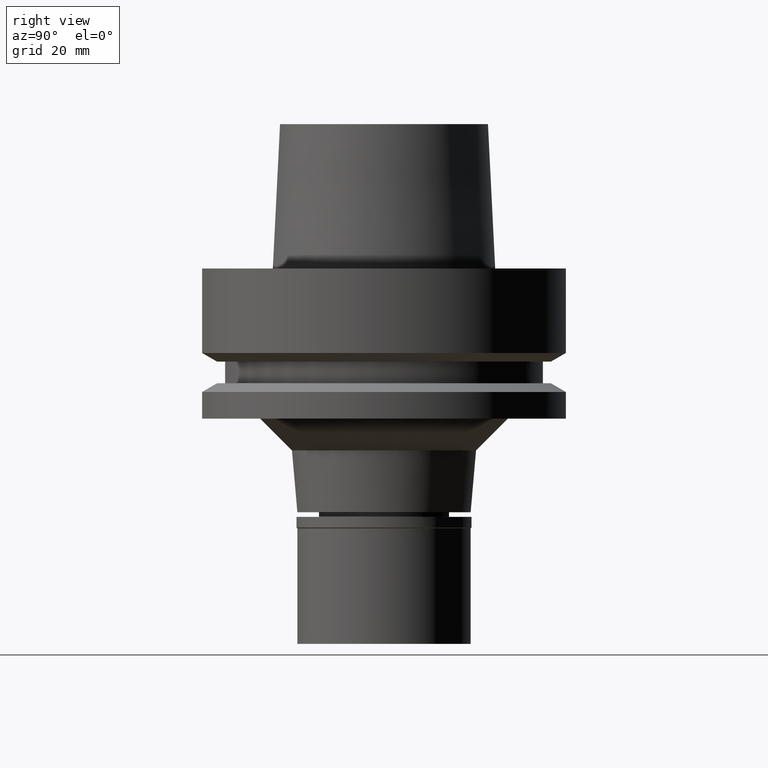
[diagram: clean part render]
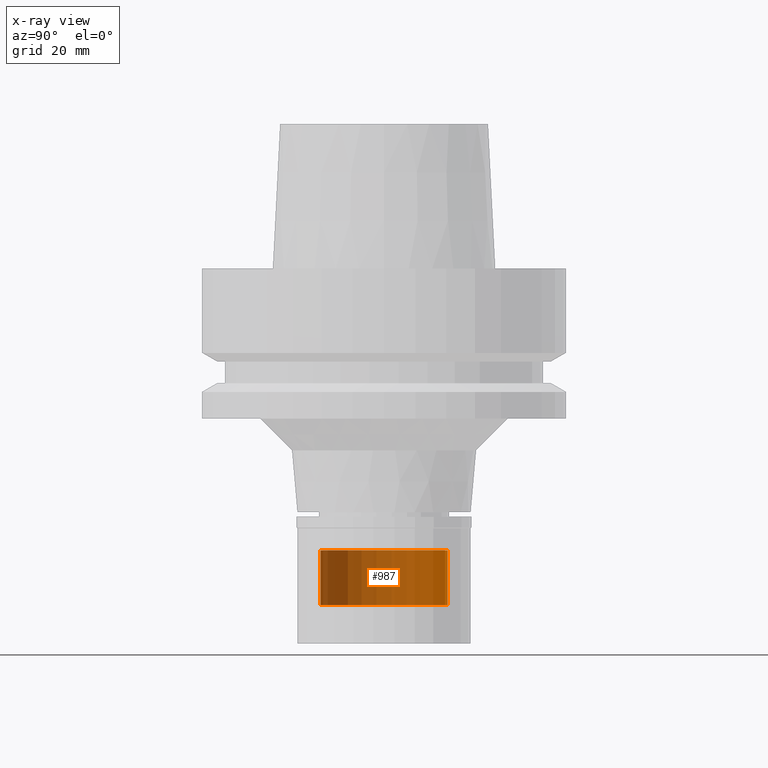
[diagram: x-ray — body ghosted, one internal face saturated and labeled with its STEP entity id]
A machine part, right view, then the same camera in x-ray: the body is ghosted and one INTERNAL B-rep face — a face not visible from any outside direction — is saturated and labeled: STEP entity #987.
In plain terms, the highlighted cylindrical surface (partial cylindrical patch) has radius 11 mm, axis along (0, 0, 1).
Its self-contained STEP definition (entity closure, byte-faithful):
#24 = CYLINDRICAL_SURFACE ( 'NONE', #1434, 11.00000000000000000 ) ;
#178 = FACE_OUTER_BOUND ( 'NONE', #1661, .T. ) ;
#205 = CIRCLE ( 'NONE', #1047, 11.00000000000000000 ) ;
#223 = VECTOR ( 'NONE', #2643, 1000.000000000000000 ) ;
#232 = LINE ( 'NONE', #1697, #1991 ) ;
#366 = VERTEX_POINT ( 'NONE', #1146 ) ;
#368 = ORIENTED_EDGE ( 'NONE', *, *, #1163, .T. ) ;
#374 = CARTESIAN_POINT ( 'NONE',  ( 0.0000000000000000000, 11.00000000000000000, -58.29999999999999716 ) ) ;
#446 = ORIENTED_EDGE ( 'NONE', *, *, #2518, .F. ) ;
#456 = ORIENTED_EDGE ( 'NONE', *, *, #2362, .T. ) ;
#594 = CIRCLE ( 'NONE', #1355, 11.00000000000000000 ) ;
#667 = DIRECTION ( 'NONE',  ( 0.0000000000000000000, 0.0000000000000000000, 1.000000000000000000 ) ) ;
#727 = CARTESIAN_POINT ( 'NONE',  ( 0.0000000000000000000, 0.0000000000000000000, -58.29999999999999716 ) ) ;
#845 = VERTEX_POINT ( 'NONE', #2694 ) ;
#987 = ADVANCED_FACE ( 'NONE', ( #178 ), #24, .T. ) ;
#1047 = AXIS2_PLACEMENT_3D ( 'NONE', #727, #2442, #1369 ) ;
#1087 = DIRECTION ( 'NONE',  ( 0.0000000000000000000, 1.000000000000000000, 0.0000000000000000000 ) ) ;
#1146 = CARTESIAN_POINT ( 'NONE',  ( 0.0000000000000000000, -11.00000000000000000, -58.29999999999999716 ) ) ;
#1163 = EDGE_CURVE ( 'NONE', #1771, #1864, #1563, .T. ) ;
#1238 = DIRECTION ( 'NONE',  ( 0.0000000000000000000, 0.0000000000000000000, -1.000000000000000000 ) ) ;
#1355 = AXIS2_PLACEMENT_3D ( 'NONE', #2106, #1238, #2082 ) ;
#1369 = DIRECTION ( 'NONE',  ( 0.0000000000000000000, 1.000000000000000000, 0.0000000000000000000 ) ) ;
#1434 = AXIS2_PLACEMENT_3D ( 'NONE', #1528, #667, #1087 ) ;
#1528 = CARTESIAN_POINT ( 'NONE',  ( 0.0000000000000000000, 0.0000000000000000000, -62.46499999999999631 ) ) ;
#1563 = LINE ( 'NONE', #2023, #223 ) ;
#1661 = EDGE_LOOP ( 'NONE', ( #1776, #446, #456, #368 ) ) ;
#1697 = CARTESIAN_POINT ( 'NONE',  ( 0.0000000000000000000, -11.00000000000000000, -48.80000000000000426 ) ) ;
#1771 = VERTEX_POINT ( 'NONE', #2652 ) ;
#1772 = EDGE_CURVE ( 'NONE', #1864, #366, #205, .T. ) ;
#1776 = ORIENTED_EDGE ( 'NONE', *, *, #1772, .T. ) ;
#1864 = VERTEX_POINT ( 'NONE', #374 ) ;
#1991 = VECTOR ( 'NONE', #2179, 1000.000000000000000 ) ;
#2023 = CARTESIAN_POINT ( 'NONE',  ( 0.0000000000000000000, 11.00000000000000000, -48.80000000000000426 ) ) ;
#2082 = DIRECTION ( 'NONE',  ( 0.0000000000000000000, -1.000000000000000000, 0.0000000000000000000 ) ) ;
#2106 = CARTESIAN_POINT ( 'NONE',  ( 0.0000000000000000000, 0.0000000000000000000, -48.80000000000000426 ) ) ;
#2179 = DIRECTION ( 'NONE',  ( 0.0000000000000000000, 0.0000000000000000000, -1.000000000000000000 ) ) ;
#2362 = EDGE_CURVE ( 'NONE', #845, #1771, #594, .T. ) ;
#2442 = DIRECTION ( 'NONE',  ( 0.0000000000000000000, 0.0000000000000000000, 1.000000000000000000 ) ) ;
#2518 = EDGE_CURVE ( 'NONE', #845, #366, #232, .T. ) ;
#2643 = DIRECTION ( 'NONE',  ( 0.0000000000000000000, 0.0000000000000000000, -1.000000000000000000 ) ) ;
#2652 = CARTESIAN_POINT ( 'NONE',  ( 0.0000000000000000000, 11.00000000000000000, -48.80000000000000426 ) ) ;
#2694 = CARTESIAN_POINT ( 'NONE',  ( 0.0000000000000000000, -11.00000000000000000, -48.80000000000000426 ) ) ;